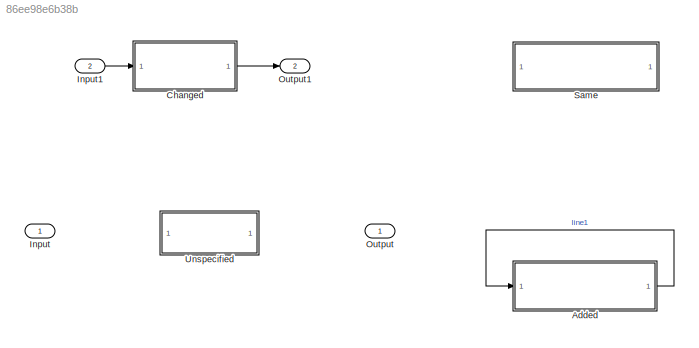
MODEL slx_86ee98e6b38b
KIND model
CONFIG AbsTol = auto
CONFIG EnableMultiTasking = off
CONFIG FixedStep = auto
CONFIG MaxStep = auto
CONFIG MinStep = auto
CONFIG RelTol = 1e-3
CONFIG SampleTimeConstraint = Unconstrained
CONFIG SolverName = VariableStepAuto
CONFIG StartTime = 0.0
CONFIG StopTime = 10.0
BLOCK [ModelReference] Added
  ModelNameDialog = subsysChanged.slx
  ModelReferenceVersion = 1.1
BLOCK [ModelReference] Changed
  ModelNameDialog = subsysChanged.slx
  ModelReferenceVersion = 1.1
BLOCK [Inport] Input
BLOCK [Inport] Input1
  Port = 2
BLOCK [Outport] Output
BLOCK [Outport] Output1
  Port = 2
BLOCK [ModelReference] Same
  ModelNameDialog = basic.slx
  ModelReferenceVersion = 1.4
BLOCK [ModelReference] Unspecified
LINE Added:1 -> Added:1
LINE Changed:1 -> Output1:1
LINE Input1:1 -> Changed:1
